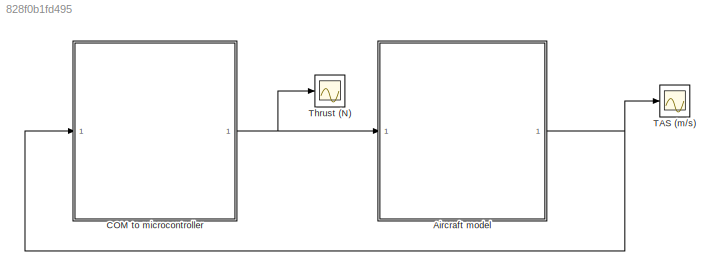
MODEL slx_828f0b1fd495
KIND model
CONFIG AbsTol = auto
CONFIG EnableMultiTasking = off
CONFIG FixedStep = 0.1
CONFIG MaxStep = auto
CONFIG MinStep = auto
CONFIG RelTol = 1e-3
CONFIG SampleTimeConstraint = Unconstrained
CONFIG SolverName = FixedStepAuto
CONFIG StartTime = 0.0
CONFIG StopTime = 50
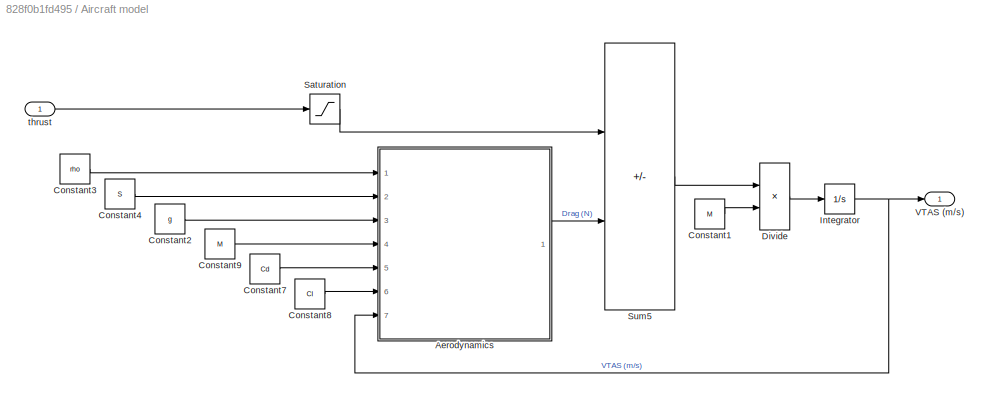
BLOCK [SubSystem] Aircraft model
  Ports = [1, 1]
  RequestExecContextInheritance = off
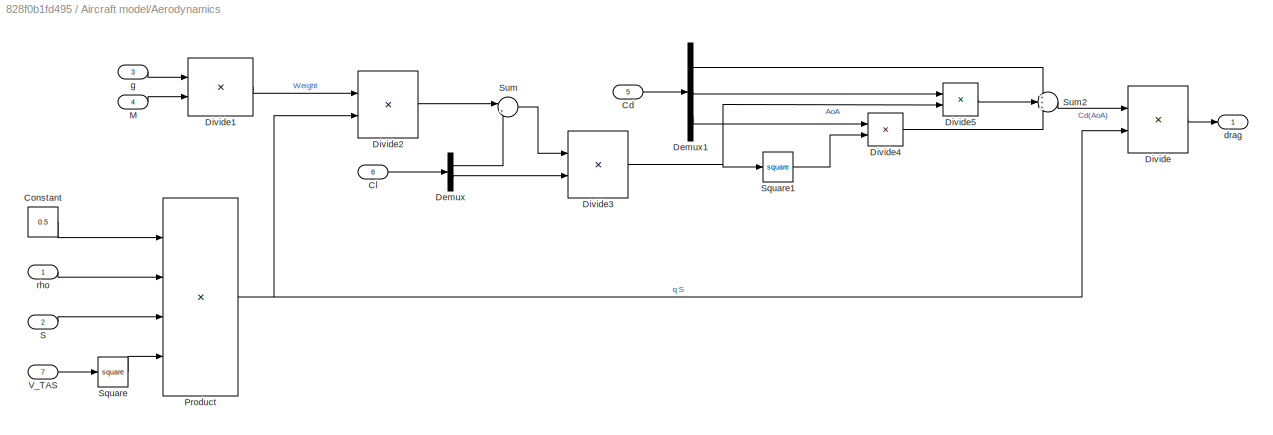
BLOCK [SubSystem] Aircraft model/Aerodynamics
  Ports = [7, 1]
  RequestExecContextInheritance = off
BLOCK [Inport] Aircraft model/Aerodynamics/Cd
  Port = 5
BLOCK [Inport] Aircraft model/Aerodynamics/Cl
  Port = 6
BLOCK [Constant] Aircraft model/Aerodynamics/Constant
  Value = 0.5
BLOCK [Demux] Aircraft model/Aerodynamics/Demux
  Outputs = 2
  Ports = [1, 2]
BLOCK [Demux] Aircraft model/Aerodynamics/Demux1
  Outputs = 3
  Ports = [1, 3]
BLOCK [Product] Aircraft model/Aerodynamics/Divide
  Inputs = **
  Ports = [2, 1]
BLOCK [Product] Aircraft model/Aerodynamics/Divide1
  Inputs = **
  Ports = [2, 1]
BLOCK [Product] Aircraft model/Aerodynamics/Divide2
  Inputs = */
  Ports = [2, 1]
BLOCK [Product] Aircraft model/Aerodynamics/Divide3
  Inputs = */
  Ports = [2, 1]
BLOCK [Product] Aircraft model/Aerodynamics/Divide4
  Inputs = **
  Ports = [2, 1]
BLOCK [Product] Aircraft model/Aerodynamics/Divide5
  Inputs = **
  Ports = [2, 1]
BLOCK [Inport] Aircraft model/Aerodynamics/M
  Port = 4
BLOCK [Product] Aircraft model/Aerodynamics/Product
  Inputs = 4
  Ports = [4, 1]
BLOCK [Inport] Aircraft model/Aerodynamics/S 
  Port = 2
BLOCK [Math] Aircraft model/Aerodynamics/Square
  Operator = square
  Ports = [1, 1]
BLOCK [Math] Aircraft model/Aerodynamics/Square1
  Operator = square
  Ports = [1, 1]
BLOCK [Sum] Aircraft model/Aerodynamics/Sum
  Inputs = |+-
  Ports = [2, 1]
BLOCK [Sum] Aircraft model/Aerodynamics/Sum2
  Inputs = +++
  Ports = [3, 1]
BLOCK [Inport] Aircraft model/Aerodynamics/V_TAS
  Port = 7
BLOCK [Outport] Aircraft model/Aerodynamics/drag
BLOCK [Inport] Aircraft model/Aerodynamics/g
  Port = 3
BLOCK [Inport] Aircraft model/Aerodynamics/rho
BLOCK [Constant] Aircraft model/Constant1
  Value = M
BLOCK [Constant] Aircraft model/Constant2
  Value = g
BLOCK [Constant] Aircraft model/Constant3
  Value = rho
BLOCK [Constant] Aircraft model/Constant4
  Value = S
BLOCK [Constant] Aircraft model/Constant7
  Value = Cd
BLOCK [Constant] Aircraft model/Constant8
  Value = Cl
BLOCK [Constant] Aircraft model/Constant9
  Value = M
BLOCK [Product] Aircraft model/Divide
  Inputs = */
  Ports = [2, 1]
BLOCK [Integrator] Aircraft model/Integrator
  InitialCondition = initTAS
  LimitOutput = on
  LowerSaturationLimit = 30
  Ports = [1, 1]
  UpperSaturationLimit = 250
BLOCK [Saturate] Aircraft model/Saturation
  LowerLimit = 0
  UpperLimit = 10000
BLOCK [Sum] Aircraft model/Sum5
  IconShape = rectangular
  Inputs = +-
  Ports = [2, 1]
BLOCK [Outport] Aircraft model/VTAS (m//s)
BLOCK [Inport] Aircraft model/thrust
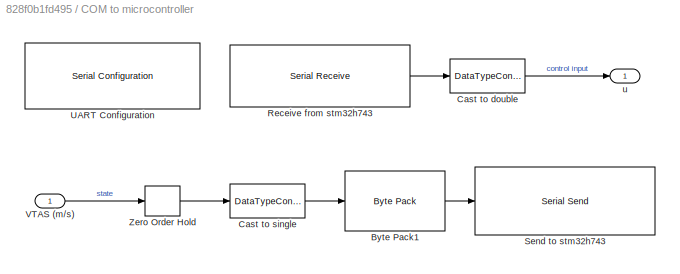
BLOCK [SubSystem] COM to microcontroller
  Ports = [1, 1]
  RequestExecContextInheritance = off
BLOCK [DataTypeConversion] COM to microcontroller/ Cast to double
  OutDataTypeStr = double
  RndMeth = Floor
  SaturateOnIntegerOverflow = off
BLOCK [Reference] COM to microcontroller/Byte Pack1  REF=svdutilitieslib/Byte Pack
  Ports = [1, 1]
  SourceBlock = svdutilitieslib/Byte Pack
  SourceProductBaseCode = ANDROID,ARDUINO,ML_ARDUINO,ECCORTEXA,ECCORTEXR,SC_BEAGLEBONE_BLUE,EC_FREEDOM_BOARD,EC_FRDM_K64F,INTEL_BLOCKSET,MICROBIT,NUCLEO,NVIDIA,PX4AUTOPILOTS,RASPPIIO,STMICRODIS,TIC2000,XILINX_BLOCKSET
  SourceType = Byte pack
BLOCK [DataTypeConversion] COM to microcontroller/Cast to single
  OutDataTypeStr = single
  RndMeth = Floor
  SaturateOnIntegerOverflow = off
BLOCK [Reference] COM to microcontroller/Receive from stm32h743  REF=instrumentseriallib/Serial Receive
  Ports = [0, 1]
  Priority = 2
  SourceBlock = instrumentseriallib/Serial Receive
  SourceProductBaseCode = IC
  SourceType = system.SerialReceive
BLOCK [Reference] COM to microcontroller/Send to stm32h743  REF=instrumentseriallib/Serial Send
  Ports = [1]
  Priority = 1
  SourceBlock = instrumentseriallib/Serial Send
  SourceProductBaseCode = IC
  SourceType = system.SerialSend
BLOCK [Reference] COM to microcontroller/UART Configuration  REF=instrumentseriallib/Serial Configuration
  Ports = []
  Priority = -200000
  SourceBlock = instrumentseriallib/Serial Configuration
  SourceProductBaseCode = IC
  SourceType = system.SerialConfiguration
BLOCK [Inport] COM to microcontroller/VTAS (m//s)
BLOCK [ZeroOrderHold] COM to microcontroller/Zero Order Hold
  SampleTime = 0.1
BLOCK [Outport] COM to microcontroller/u
BLOCK [Scope] TAS (m//s)
  Floating = off
  NumInputPorts = 1
  Ports = [1]
  ScopeSpecificationString = Simulink.scopes.TimeScopeBlockCfg('CurrentConfiguration', extmgr.ConfigurationSet(extmgr.Configuration('Core','General UI',true),extmgr.Configuration('Core','Source UI',true),extmgr.Configuration('Sources','WiredSimulink',true),extmgr.Configuration('Visuals','Time Domain',true,'SerializedDisplays',{struct('MinYLimReal','64.55687','MaxYLimReal','83.98819','YLabelReal','','MinYLimMag','64.55687','Ma...<+1395ch>
BLOCK [Scope] Thrust (N)
  Floating = off
  NumInputPorts = 1
  Ports = [1]
  ScopeSpecificationString = Simulink.scopes.TimeScopeBlockCfg('CurrentConfiguration', extmgr.ConfigurationSet(extmgr.Configuration('Core','General UI',true),extmgr.Configuration('Core','Source UI',true),extmgr.Configuration('Sources','WiredSimulink',true,'DataLoggingVariableName','ScopeData1'),extmgr.Configuration('Visuals','Time Domain',true,'SerializedDisplays',{struct('MinYLimReal','2233.87411','MaxYLimReal','12639.44693'...<+1436ch>
LINE Aircraft model/Aerodynamics/Cd:1 -> Aircraft model/Aerodynamics/Demux1:1
LINE Aircraft model/Aerodynamics/Cl:1 -> Aircraft model/Aerodynamics/Demux:1
LINE Aircraft model/Aerodynamics/Constant:1 -> Aircraft model/Aerodynamics/Product:1
LINE Aircraft model/Aerodynamics/Demux1:1 -> Aircraft model/Aerodynamics/Sum2:1
LINE Aircraft model/Aerodynamics/Demux1:2 -> Aircraft model/Aerodynamics/Divide5:1
LINE Aircraft model/Aerodynamics/Demux1:3 -> Aircraft model/Aerodynamics/Divide4:1
LINE Aircraft model/Aerodynamics/Demux:1 -> Aircraft model/Aerodynamics/Sum:2
LINE Aircraft model/Aerodynamics/Demux:2 -> Aircraft model/Aerodynamics/Divide3:2
LINE Aircraft model/Aerodynamics/Divide1:1 -> Aircraft model/Aerodynamics/Divide2:1
LINE Aircraft model/Aerodynamics/Divide2:1 -> Aircraft model/Aerodynamics/Sum:1
NET Aircraft model/Aerodynamics/Divide3:1 -> Aircraft model/Aerodynamics/Divide5:2, Aircraft model/Aerodynamics/Square1:1
LINE Aircraft model/Aerodynamics/Divide4:1 -> Aircraft model/Aerodynamics/Sum2:3
LINE Aircraft model/Aerodynamics/Divide5:1 -> Aircraft model/Aerodynamics/Sum2:2
LINE Aircraft model/Aerodynamics/Divide:1 -> Aircraft model/Aerodynamics/drag:1
LINE Aircraft model/Aerodynamics/M:1 -> Aircraft model/Aerodynamics/Divide1:2
NET Aircraft model/Aerodynamics/Product:1 -> Aircraft model/Aerodynamics/Divide2:2, Aircraft model/Aerodynamics/Divide:2
LINE Aircraft model/Aerodynamics/S :1 -> Aircraft model/Aerodynamics/Product:3
LINE Aircraft model/Aerodynamics/Square1:1 -> Aircraft model/Aerodynamics/Divide4:2
LINE Aircraft model/Aerodynamics/Square:1 -> Aircraft model/Aerodynamics/Product:4
LINE Aircraft model/Aerodynamics/Sum2:1 -> Aircraft model/Aerodynamics/Divide:1
LINE Aircraft model/Aerodynamics/Sum:1 -> Aircraft model/Aerodynamics/Divide3:1
LINE Aircraft model/Aerodynamics/V_TAS:1 -> Aircraft model/Aerodynamics/Square:1
LINE Aircraft model/Aerodynamics/g:1 -> Aircraft model/Aerodynamics/Divide1:1
LINE Aircraft model/Aerodynamics/rho:1 -> Aircraft model/Aerodynamics/Product:2
LINE Aircraft model/Aerodynamics:1 -> Aircraft model/Sum5:2
LINE Aircraft model/Constant1:1 -> Aircraft model/Divide:2
LINE Aircraft model/Constant2:1 -> Aircraft model/Aerodynamics:3
LINE Aircraft model/Constant3:1 -> Aircraft model/Aerodynamics:1
LINE Aircraft model/Constant4:1 -> Aircraft model/Aerodynamics:2
LINE Aircraft model/Constant7:1 -> Aircraft model/Aerodynamics:5
LINE Aircraft model/Constant8:1 -> Aircraft model/Aerodynamics:6
LINE Aircraft model/Constant9:1 -> Aircraft model/Aerodynamics:4
LINE Aircraft model/Divide:1 -> Aircraft model/Integrator:1
NET Aircraft model/Integrator:1 -> Aircraft model/Aerodynamics:7, Aircraft model/VTAS (m//s):1
LINE Aircraft model/Saturation:1 -> Aircraft model/Sum5:1
LINE Aircraft model/Sum5:1 -> Aircraft model/Divide:1
LINE Aircraft model/thrust:1 -> Aircraft model/Saturation:1
NET Aircraft model:1 -> COM to microcontroller:1, TAS (m//s):1
LINE COM to microcontroller/ Cast to double:1 -> COM to microcontroller/u:1
LINE COM to microcontroller/Byte Pack1:1 -> COM to microcontroller/Send to stm32h743:1
LINE COM to microcontroller/Cast to single:1 -> COM to microcontroller/Byte Pack1:1
LINE COM to microcontroller/Receive from stm32h743:1 -> COM to microcontroller/ Cast to double:1
LINE COM to microcontroller/VTAS (m//s):1 -> COM to microcontroller/Zero Order Hold:1
LINE COM to microcontroller/Zero Order Hold:1 -> COM to microcontroller/Cast to single:1
NET COM to microcontroller:1 -> Aircraft model:1, Thrust (N):1
note: NET lines group one-source signal fan-out (src -> all destinations, sorted); 1:1 wires keep LINE
